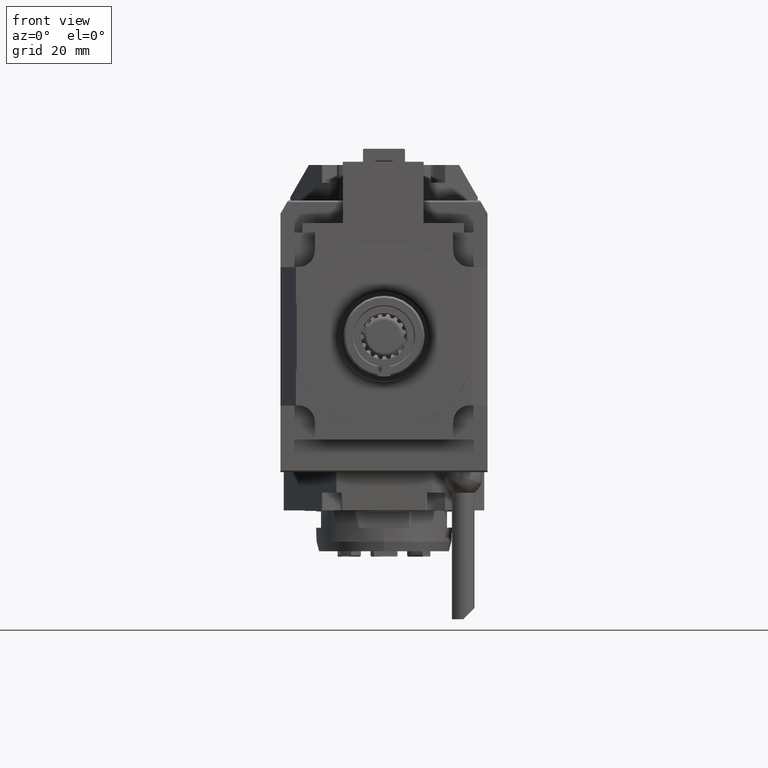
[diagram: clean part render]
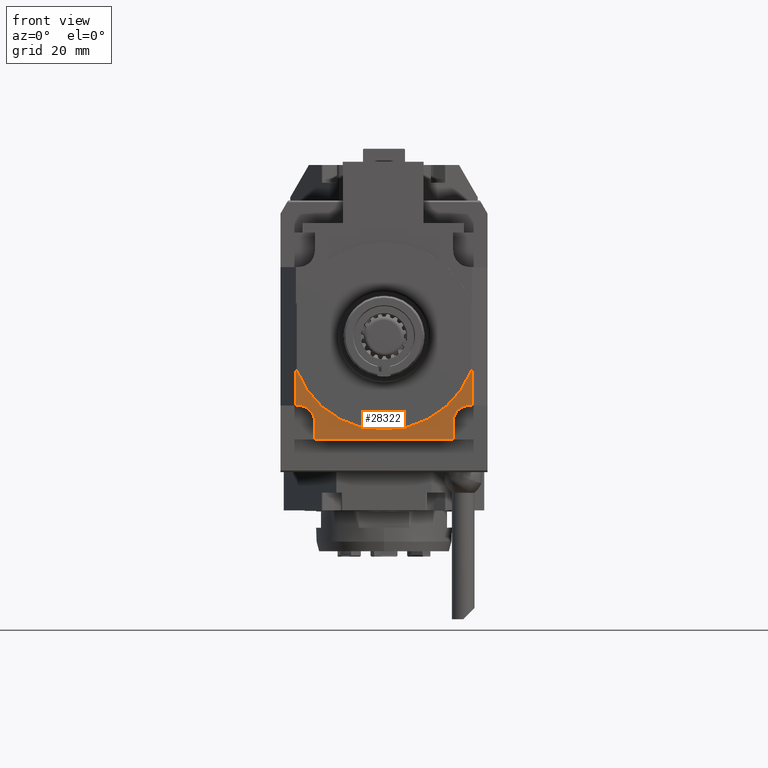
[diagram: same view with one face highlighted and labeled with its STEP entity id]
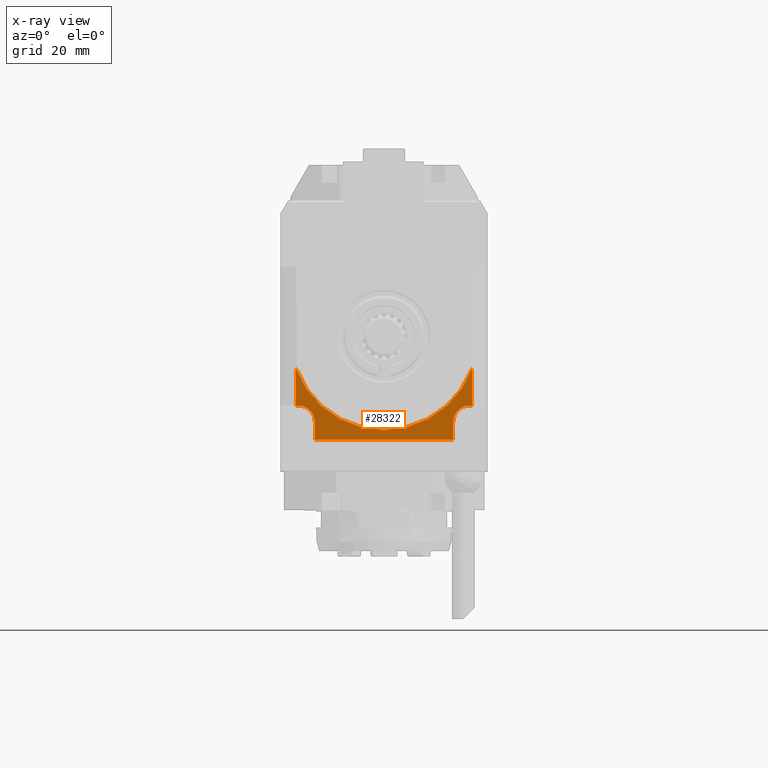
[diagram: x-ray of the same camera — body ghosted, the highlighted face saturated]
A machine part, front view. The second image highlights one B-rep face of the part: STEP entity #28322.
The next image is the same camera in x-ray: the body ghosted, the highlighted face saturated — about 0% of this face is hidden behind the body in this view.
In plain terms, the highlighted planar face has unit normal (-0, -1, 0).
Its self-contained STEP definition (entity closure, byte-faithful):
#23 = DIRECTION ( 'NONE',  ( 0.000000000000000000, 0.000000000000000000, -1.000000000000000000 ) ) ;
#87 = DIRECTION ( 'NONE',  ( -1.178803794788639945E-17, -2.090524963806786883E-16, -1.000000000000000000 ) ) ;
#583 = EDGE_CURVE ( 'NONE', #20914, #22719, #19491, .T. ) ;
#1411 = EDGE_CURVE ( 'NONE', #10537, #22719, #7924, .T. ) ;
#2255 = CARTESIAN_POINT ( 'NONE',  ( 27.24657271301563810, -74.50000000000001421, -43.99999999999994316 ) ) ;
#2627 = ORIENTED_EDGE ( 'NONE', *, *, #1411, .F. ) ;
#3068 = CARTESIAN_POINT ( 'NONE',  ( 26.49999999999998224, -74.50000000000001421, -26.49999999999995737 ) ) ;
#4162 = CARTESIAN_POINT ( 'NONE',  ( -27.24657271301563455, -74.50000000000001421, -9.930975550989463940 ) ) ;
#4379 = EDGE_CURVE ( 'NONE', #5585, #20914, #31165, .T. ) ;
#4817 = ORIENTED_EDGE ( 'NONE', *, *, #34058, .F. ) ;
#5421 = AXIS2_PLACEMENT_3D ( 'NONE', #5801, #28394, #12445 ) ;
#5585 = VERTEX_POINT ( 'NONE', #27223 ) ;
#5801 = CARTESIAN_POINT ( 'NONE',  ( -1.405126015541224002E-15, -74.50000000000001421, 8.520072815714239303E-15 ) ) ;
#6381 = CARTESIAN_POINT ( 'NONE',  ( 27.24657271301563455, -74.50000000000001421, -9.930975550989469269 ) ) ;
#7172 = VECTOR ( 'NONE', #7709, 1000.000000000000000 ) ;
#7613 = DIRECTION ( 'NONE',  ( -1.178803794788639791E-17, -2.090524963806786883E-16, -1.000000000000000000 ) ) ;
#7709 = DIRECTION ( 'NONE',  ( -4.828903755696039068E-17, 2.090524963806786883E-16, 1.000000000000000000 ) ) ;
#7924 = CIRCLE ( 'NONE', #30419, 5.099999999999996980 ) ;
#8791 = DIRECTION ( 'NONE',  ( -6.245004513516544983E-17, -1.000000000000000000, 7.027461830253380026E-17 ) ) ;
#10430 = VERTEX_POINT ( 'NONE', #13171 ) ;
#10537 = VERTEX_POINT ( 'NONE', #31279 ) ;
#10762 = CARTESIAN_POINT ( 'NONE',  ( 21.39999999999997726, -74.50000000000001421, -26.49999999999994316 ) ) ;
#10768 = ORIENTED_EDGE ( 'NONE', *, *, #31099, .T. ) ;
#11019 = DIRECTION ( 'NONE',  ( -6.245004513516543750E-17, -1.000000000000000000, 2.090524963806786883E-16 ) ) ;
#11299 = LINE ( 'NONE', #34028, #25724 ) ;
#12445 = DIRECTION ( 'NONE',  ( -1.178803794788639945E-17, 0.000000000000000000, -1.000000000000000000 ) ) ;
#12706 = VERTEX_POINT ( 'NONE', #34269 ) ;
#13171 = CARTESIAN_POINT ( 'NONE',  ( -27.24657271301563455, -74.50000000000001421, -21.39999999999995595 ) ) ;
#13173 = CARTESIAN_POINT ( 'NONE',  ( -21.39999999999997016, -74.50000000000001421, -43.99999999999995026 ) ) ;
#14318 = ORIENTED_EDGE ( 'NONE', *, *, #22367, .F. ) ;
#15459 = DIRECTION ( 'NONE',  ( 1.000000000000000000, -6.245004513516538820E-17, -1.178803794788658126E-17 ) ) ;
#15590 = ORIENTED_EDGE ( 'NONE', *, *, #21246, .T. ) ;
#16258 = ORIENTED_EDGE ( 'NONE', *, *, #4379, .T. ) ;
#16868 = ORIENTED_EDGE ( 'NONE', *, *, #583, .T. ) ;
#16923 = PLANE ( 'NONE',  #32849 ) ;
#17870 = DIRECTION ( 'NONE',  ( 0.000000000000000000, 0.000000000000000000, -1.000000000000000000 ) ) ;
#17873 = CARTESIAN_POINT ( 'NONE',  ( -1.657390027625992814E-15, -74.50000000000001421, -21.39999999999995950 ) ) ;
#18239 = VERTEX_POINT ( 'NONE', #6381 ) ;
#18829 = CARTESIAN_POINT ( 'NONE',  ( -27.24657271301563455, -74.50000000000001421, -43.99999999999995026 ) ) ;
#19491 = LINE ( 'NONE', #30610, #24471 ) ;
#19575 = VERTEX_POINT ( 'NONE', #4162 ) ;
#20043 = CARTESIAN_POINT ( 'NONE',  ( -3.083385836856191443E-15, -74.50000000000001421, -31.99999999999995381 ) ) ;
#20914 = VERTEX_POINT ( 'NONE', #30827 ) ;
#21127 = EDGE_CURVE ( 'NONE', #12706, #5585, #27255, .T. ) ;
#21246 = EDGE_CURVE ( 'NONE', #10430, #27376, #11299, .T. ) ;
#21520 = DIRECTION ( 'NONE',  ( 1.449753210443678698E-16, -2.090524963806786883E-16, -1.000000000000000000 ) ) ;
#21925 = AXIS2_PLACEMENT_3D ( 'NONE', #25764, #36275, #23 ) ;
#22104 = DIRECTION ( 'NONE',  ( 1.178803794788639791E-17, 2.090524963806786883E-16, 1.000000000000000000 ) ) ;
#22367 = EDGE_CURVE ( 'NONE', #19575, #18239, #27316, .T. ) ;
#22719 = VERTEX_POINT ( 'NONE', #10762 ) ;
#22770 = CARTESIAN_POINT ( 'NONE',  ( -26.49999999999997158, -74.50000000000001421, -21.39999999999995595 ) ) ;
#23492 = VECTOR ( 'NONE', #25612, 1000.000000000000000 ) ;
#23852 = LINE ( 'NONE', #18829, #7172 ) ;
#23952 = VECTOR ( 'NONE', #7613, 1000.000000000000000 ) ;
#24143 = ORIENTED_EDGE ( 'NONE', *, *, #34801, .F. ) ;
#24471 = VECTOR ( 'NONE', #22104, 1000.000000000000000 ) ;
#25173 = EDGE_CURVE ( 'NONE', #18239, #36198, #35374, .T. ) ;
#25587 = CARTESIAN_POINT ( 'NONE',  ( 27.24657271301563455, -74.50000000000001421, -21.39999999999995950 ) ) ;
#25612 = DIRECTION ( 'NONE',  ( 1.000000000000000000, -6.245004513516537587E-17, 9.663217930066380667E-17 ) ) ;
#25724 = VECTOR ( 'NONE', #25748, 1000.000000000000000 ) ;
#25748 = DIRECTION ( 'NONE',  ( 1.000000000000000000, -6.245004513516538820E-17, -1.178803794788658126E-17 ) ) ;
#25764 = CARTESIAN_POINT ( 'NONE',  ( -26.49999999999998224, -74.50000000000001421, -26.49999999999995381 ) ) ;
#27223 = CARTESIAN_POINT ( 'NONE',  ( -21.39999999999997016, -74.50000000000001421, -31.99999999999995381 ) ) ;
#27255 = LINE ( 'NONE', #13173, #23952 ) ;
#27316 = CIRCLE ( 'NONE', #5421, 28.99999999999997158 ) ;
#27376 = VERTEX_POINT ( 'NONE', #22770 ) ;
#28322 = ADVANCED_FACE ( 'Defeature completata1_431', ( #36515 ), #16923, .T. ) ;
#28394 = DIRECTION ( 'NONE',  ( -6.245004513516544983E-17, -1.000000000000000000, 7.027461830253380026E-17 ) ) ;
#29309 = ORIENTED_EDGE ( 'NONE', *, *, #21127, .T. ) ;
#30212 = CIRCLE ( 'NONE', #21925, 5.099999999999993427 ) ;
#30419 = AXIS2_PLACEMENT_3D ( 'NONE', #3068, #8791, #17870 ) ;
#30610 = CARTESIAN_POINT ( 'NONE',  ( 21.39999999999997726, -74.50000000000001421, -43.99999999999995026 ) ) ;
#30827 = CARTESIAN_POINT ( 'NONE',  ( 21.39999999999997726, -74.50000000000001421, -31.99999999999994671 ) ) ;
#31099 = EDGE_CURVE ( 'NONE', #10537, #36198, #35051, .T. ) ;
#31165 = LINE ( 'NONE', #20043, #23492 ) ;
#31279 = CARTESIAN_POINT ( 'NONE',  ( 26.49999999999997868, -74.50000000000001421, -21.39999999999995950 ) ) ;
#31536 = CARTESIAN_POINT ( 'NONE',  ( -1.923799685248224037E-15, -74.50000000000001421, -43.99999999999995026 ) ) ;
#32849 = AXIS2_PLACEMENT_3D ( 'NONE', #31536, #11019, #87 ) ;
#33580 = ORIENTED_EDGE ( 'NONE', *, *, #25173, .F. ) ;
#34028 = CARTESIAN_POINT ( 'NONE',  ( -1.657390027625992814E-15, -74.50000000000001421, -21.39999999999996660 ) ) ;
#34058 = EDGE_CURVE ( 'NONE', #12706, #27376, #30212, .T. ) ;
#34269 = CARTESIAN_POINT ( 'NONE',  ( -21.39999999999997016, -74.50000000000001421, -26.49999999999993960 ) ) ;
#34652 = EDGE_LOOP ( 'NONE', ( #33580, #14318, #24143, #15590, #4817, #29309, #16258, #16868, #2627, #10768 ) ) ;
#34801 = EDGE_CURVE ( 'NONE', #10430, #19575, #23852, .T. ) ;
#35051 = LINE ( 'NONE', #17873, #36461 ) ;
#35374 = LINE ( 'NONE', #2255, #36035 ) ;
#36035 = VECTOR ( 'NONE', #21520, 1000.000000000000000 ) ;
#36198 = VERTEX_POINT ( 'NONE', #25587 ) ;
#36275 = DIRECTION ( 'NONE',  ( -6.245004513516544983E-17, -1.000000000000000000, 7.027461830253380026E-17 ) ) ;
#36461 = VECTOR ( 'NONE', #15459, 1000.000000000000000 ) ;
#36515 = FACE_OUTER_BOUND ( 'NONE', #34652, .T. ) ;